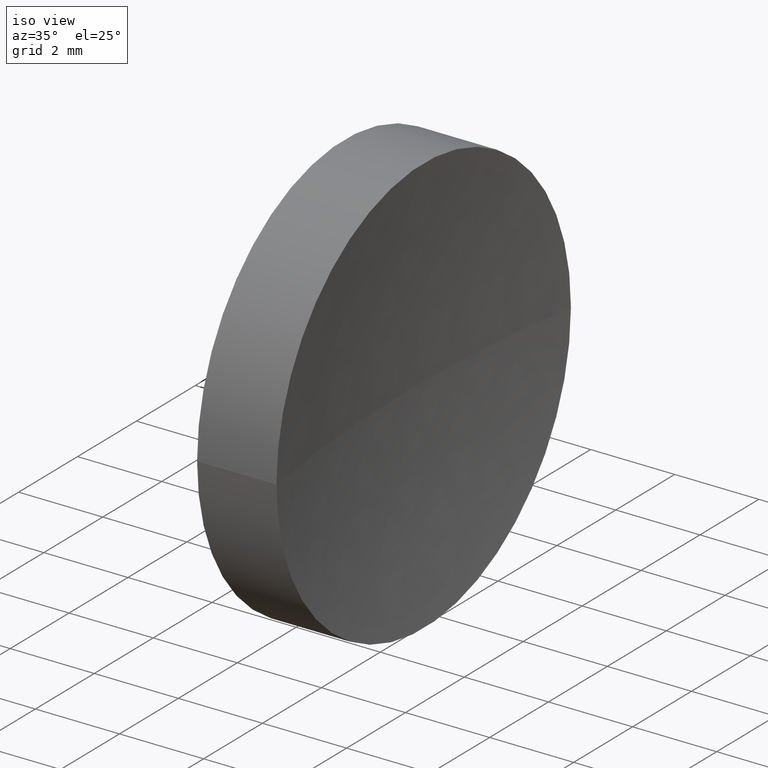
[diagram: clean part render]
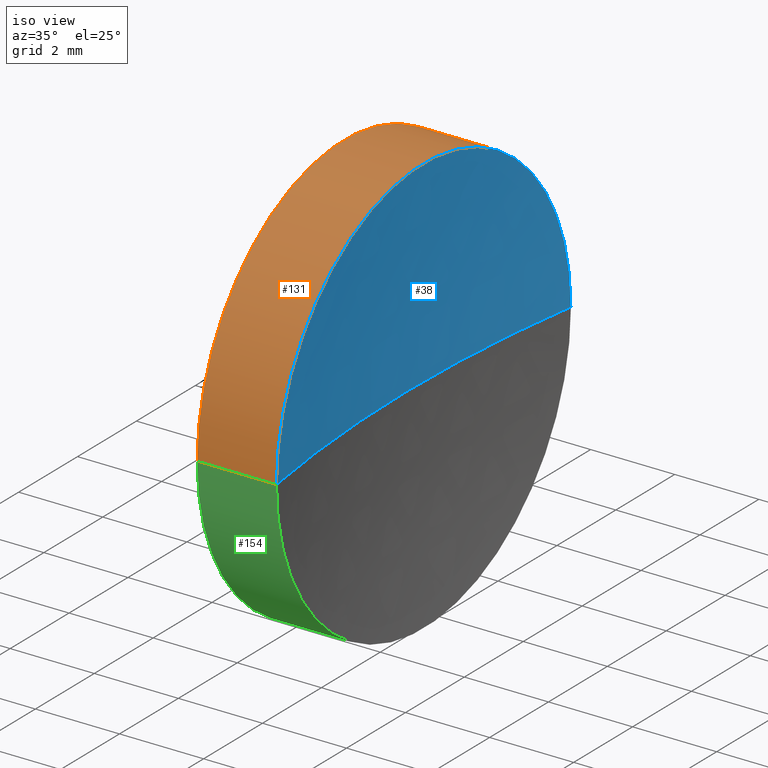
[diagram: same view with three faces highlighted in distinct colors, each labeled with its STEP entity id]
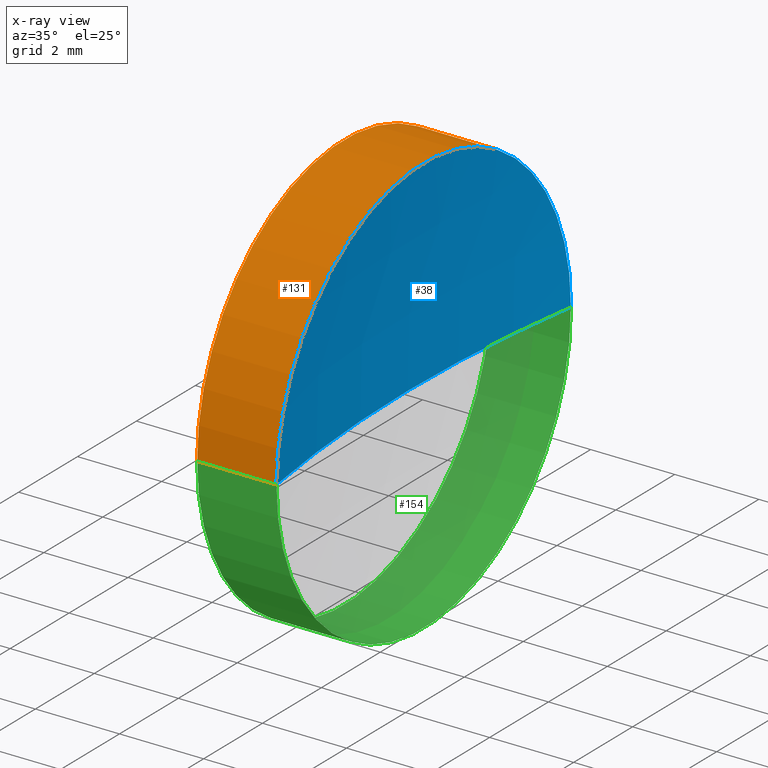
[diagram: x-ray of the same camera — body ghosted, the three highlighted faces saturated]
A machine part, iso view with three faces highlighted in distinct colors.
The next image is the same camera in x-ray (body ghosted, the three faces saturated) — at least one of them is partly hidden behind the body in this view.
Their STEP definitions:

[orange] entity #131 — the highlighted cylindrical surface (partial cylindrical patch) has radius 5 mm, axis along (-1, 0, -0).
#1 = ORIENTED_EDGE ( 'NONE', *, *, #104, .T. ) ;
#2 = CARTESIAN_POINT ( 'NONE',  ( 22.42423205362066000, 18.03112609140304200, 6.123233995736768300E-016 ) ) ;
#5 = CARTESIAN_POINT ( 'NONE',  ( 24.31115060695783500, 13.03112609140304000, 0.0000000000000000000 ) ) ;
#9 = VERTEX_POINT ( 'NONE', #2 ) ;
#11 = DIRECTION ( 'NONE',  ( -1.000000000000000000, 3.159171411554934600E-016, -0.0000000000000000000 ) ) ;
#14 = DIRECTION ( 'NONE',  ( -1.000000000000000000, 3.159171411554934600E-016, -0.0000000000000000000 ) ) ;
#18 = EDGE_CURVE ( 'NONE', #36, #114, #113, .T. ) ;
#22 = VECTOR ( 'NONE', #78, 1000.000000000000000 ) ;
#24 = EDGE_CURVE ( 'NONE', #114, #9, #150, .T. ) ;
#25 = CARTESIAN_POINT ( 'NONE',  ( 22.42423205362066000, 13.03112609140304200, 0.0000000000000000000 ) ) ;
#34 = CARTESIAN_POINT ( 'NONE',  ( 21.50597511808246100, 18.03112609140304200, 6.123233995736768300E-016 ) ) ;
#35 = VERTEX_POINT ( 'NONE', #43 ) ;
#36 = VERTEX_POINT ( 'NONE', #143 ) ;
#37 = ORIENTED_EDGE ( 'NONE', *, *, #24, .F. ) ;
#42 = VECTOR ( 'NONE', #155, 1000.000000000000000 ) ;
#43 = CARTESIAN_POINT ( 'NONE',  ( 24.31115060695783800, 18.03112609140307800, 0.0000000000000000000 ) ) ;
#48 = EDGE_CURVE ( 'NONE', #35, #9, #109, .T. ) ;
#49 = DIRECTION ( 'NONE',  ( 0.0000000000000000000, -1.000000000000000000, 0.0000000000000000000 ) ) ;
#53 = FACE_OUTER_BOUND ( 'NONE', #87, .T. ) ;
#59 = AXIS2_PLACEMENT_3D ( 'NONE', #25, #11, #120 ) ;
#64 = CARTESIAN_POINT ( 'NONE',  ( 21.50597511808246100, 8.031126091403040200, 0.0000000000000000000 ) ) ;
#78 = DIRECTION ( 'NONE',  ( -1.000000000000000000, 3.159171411554934600E-016, -0.0000000000000000000 ) ) ;
#79 = CYLINDRICAL_SURFACE ( 'NONE', #134, 5.000000000000000900 ) ;
#87 = EDGE_LOOP ( 'NONE', ( #1, #153, #37, #144 ) ) ;
#89 = DIRECTION ( 'NONE',  ( -1.000000000000000000, 3.159171411554934600E-016, -0.0000000000000000000 ) ) ;
#93 = AXIS2_PLACEMENT_3D ( 'NONE', #5, #89, #49 ) ;
#99 = CIRCLE ( 'NONE', #93, 5.000000000000002700 ) ;
#104 = EDGE_CURVE ( 'NONE', #36, #35, #99, .T. ) ;
#109 = LINE ( 'NONE', #34, #22 ) ;
#113 = LINE ( 'NONE', #64, #42 ) ;
#114 = VERTEX_POINT ( 'NONE', #139 ) ;
#120 = DIRECTION ( 'NONE',  ( 0.0000000000000000000, -1.000000000000000000, 0.0000000000000000000 ) ) ;
#131 = ADVANCED_FACE ( 'NONE', ( #53 ), #79, .T. ) ;
#134 = AXIS2_PLACEMENT_3D ( 'NONE', #162, #14, #152 ) ;
#139 = CARTESIAN_POINT ( 'NONE',  ( 22.42423205362066000, 8.031126091403040200, 0.0000000000000000000 ) ) ;
#143 = CARTESIAN_POINT ( 'NONE',  ( 24.31115060695783800, 8.031126091403004700, -6.123233995736810700E-016 ) ) ;
#144 = ORIENTED_EDGE ( 'NONE', *, *, #18, .F. ) ;
#150 = CIRCLE ( 'NONE', #59, 5.000000000000000900 ) ;
#152 = DIRECTION ( 'NONE',  ( 0.0000000000000000000, -1.000000000000000000, 0.0000000000000000000 ) ) ;
#153 = ORIENTED_EDGE ( 'NONE', *, *, #48, .T. ) ;
#155 = DIRECTION ( 'NONE',  ( -1.000000000000000000, 3.159171411554934600E-016, -0.0000000000000000000 ) ) ;
#162 = CARTESIAN_POINT ( 'NONE',  ( 21.50597511808246100, 13.03112609140304200, 0.0000000000000000000 ) ) ;

[blue] entity #38 — the highlighted spherical surface has radius 32.5 mm.
#5 = CARTESIAN_POINT ( 'NONE',  ( 24.31115060695783500, 13.03112609140304000, 0.0000000000000000000 ) ) ;
#8 = EDGE_CURVE ( 'NONE', #35, #101, #81, .T. ) ;
#10 = EDGE_CURVE ( 'NONE', #36, #101, #20, .T. ) ;
#20 = CIRCLE ( 'NONE', #32, 32.50000000000001400 ) ;
#32 = AXIS2_PLACEMENT_3D ( 'NONE', #44, #71, #157 ) ;
#35 = VERTEX_POINT ( 'NONE', #43 ) ;
#36 = VERTEX_POINT ( 'NONE', #143 ) ;
#38 = ADVANCED_FACE ( 'NONE', ( #72 ), #111, .F. ) ;
#41 = AXIS2_PLACEMENT_3D ( 'NONE', #73, #85, #86 ) ;
#43 = CARTESIAN_POINT ( 'NONE',  ( 24.31115060695783800, 18.03112609140307800, 0.0000000000000000000 ) ) ;
#44 = CARTESIAN_POINT ( 'NONE',  ( 56.42423205362066300, 13.03112609140303100, 0.0000000000000000000 ) ) ;
#49 = DIRECTION ( 'NONE',  ( 0.0000000000000000000, -1.000000000000000000, 0.0000000000000000000 ) ) ;
#55 = EDGE_LOOP ( 'NONE', ( #76, #161, #91 ) ) ;
#61 = DIRECTION ( 'NONE',  ( 1.000000000000000000, 0.0000000000000000000, 0.0000000000000000000 ) ) ;
#63 = AXIS2_PLACEMENT_3D ( 'NONE', #142, #145, #61 ) ;
#71 = DIRECTION ( 'NONE',  ( 3.868869157118576300E-032, 1.224646799147353200E-016, -1.000000000000000000 ) ) ;
#72 = FACE_OUTER_BOUND ( 'NONE', #55, .T. ) ;
#73 = CARTESIAN_POINT ( 'NONE',  ( 56.42423205362066300, 13.03112609140303100, 0.0000000000000000000 ) ) ;
#76 = ORIENTED_EDGE ( 'NONE', *, *, #104, .F. ) ;
#81 = CIRCLE ( 'NONE', #63, 32.50000000000000700 ) ;
#85 = DIRECTION ( 'NONE',  ( 0.0000000000000000000, 0.0000000000000000000, -1.000000000000000000 ) ) ;
#86 = DIRECTION ( 'NONE',  ( 2.135044278125300100E-016, 1.000000000000000000, 0.0000000000000000000 ) ) ;
#89 = DIRECTION ( 'NONE',  ( -1.000000000000000000, 3.159171411554934600E-016, -0.0000000000000000000 ) ) ;
#91 = ORIENTED_EDGE ( 'NONE', *, *, #8, .F. ) ;
#93 = AXIS2_PLACEMENT_3D ( 'NONE', #5, #89, #49 ) ;
#99 = CIRCLE ( 'NONE', #93, 5.000000000000002700 ) ;
#101 = VERTEX_POINT ( 'NONE', #124 ) ;
#104 = EDGE_CURVE ( 'NONE', #36, #35, #99, .T. ) ;
#111 = SPHERICAL_SURFACE ( 'NONE', #41, 32.50000000000000700 ) ;
#124 = CARTESIAN_POINT ( 'NONE',  ( 23.92423205362065300, 13.03112609140304400, 0.0000000000000000000 ) ) ;
#142 = CARTESIAN_POINT ( 'NONE',  ( 56.42423205362066300, 13.03112609140303100, 0.0000000000000000000 ) ) ;
#143 = CARTESIAN_POINT ( 'NONE',  ( 24.31115060695783800, 8.031126091403004700, -6.123233995736810700E-016 ) ) ;
#145 = DIRECTION ( 'NONE',  ( 0.0000000000000000000, 0.0000000000000000000, 1.000000000000000000 ) ) ;
#157 = DIRECTION ( 'NONE',  ( 0.0000000000000000000, 1.000000000000000000, 1.224646799147353200E-016 ) ) ;
#161 = ORIENTED_EDGE ( 'NONE', *, *, #10, .T. ) ;

[green] entity #154 — the highlighted cylindrical surface (partial cylindrical patch) has radius 5 mm, axis along (-1, 0, -0).
#2 = CARTESIAN_POINT ( 'NONE',  ( 22.42423205362066000, 18.03112609140304200, 6.123233995736768300E-016 ) ) ;
#9 = VERTEX_POINT ( 'NONE', #2 ) ;
#18 = EDGE_CURVE ( 'NONE', #36, #114, #113, .T. ) ;
#21 = ORIENTED_EDGE ( 'NONE', *, *, #39, .T. ) ;
#22 = VECTOR ( 'NONE', #78, 1000.000000000000000 ) ;
#26 = DIRECTION ( 'NONE',  ( 0.0000000000000000000, -1.000000000000000000, 0.0000000000000000000 ) ) ;
#27 = ORIENTED_EDGE ( 'NONE', *, *, #48, .F. ) ;
#28 = CARTESIAN_POINT ( 'NONE',  ( 22.42423205362066000, 13.03112609140304200, 0.0000000000000000000 ) ) ;
#30 = DIRECTION ( 'NONE',  ( -1.000000000000000000, 3.159171411554934600E-016, -0.0000000000000000000 ) ) ;
#31 = CYLINDRICAL_SURFACE ( 'NONE', #102, 5.000000000000000900 ) ;
#34 = CARTESIAN_POINT ( 'NONE',  ( 21.50597511808246100, 18.03112609140304200, 6.123233995736768300E-016 ) ) ;
#35 = VERTEX_POINT ( 'NONE', #43 ) ;
#36 = VERTEX_POINT ( 'NONE', #143 ) ;
#39 = EDGE_CURVE ( 'NONE', #35, #36, #117, .T. ) ;
#42 = VECTOR ( 'NONE', #155, 1000.000000000000000 ) ;
#43 = CARTESIAN_POINT ( 'NONE',  ( 24.31115060695783800, 18.03112609140307800, 0.0000000000000000000 ) ) ;
#48 = EDGE_CURVE ( 'NONE', #35, #9, #109, .T. ) ;
#50 = CARTESIAN_POINT ( 'NONE',  ( 21.50597511808246100, 13.03112609140304200, 0.0000000000000000000 ) ) ;
#51 = ORIENTED_EDGE ( 'NONE', *, *, #151, .F. ) ;
#64 = CARTESIAN_POINT ( 'NONE',  ( 21.50597511808246100, 8.031126091403040200, 0.0000000000000000000 ) ) ;
#66 = AXIS2_PLACEMENT_3D ( 'NONE', #107, #122, #26 ) ;
#67 = DIRECTION ( 'NONE',  ( 0.0000000000000000000, -1.000000000000000000, 0.0000000000000000000 ) ) ;
#75 = DIRECTION ( 'NONE',  ( 0.0000000000000000000, -1.000000000000000000, 0.0000000000000000000 ) ) ;
#78 = DIRECTION ( 'NONE',  ( -1.000000000000000000, 3.159171411554934600E-016, -0.0000000000000000000 ) ) ;
#94 = FACE_OUTER_BOUND ( 'NONE', #97, .T. ) ;
#97 = EDGE_LOOP ( 'NONE', ( #27, #21, #165, #51 ) ) ;
#102 = AXIS2_PLACEMENT_3D ( 'NONE', #50, #110, #67 ) ;
#107 = CARTESIAN_POINT ( 'NONE',  ( 24.31115060695783500, 13.03112609140304000, 0.0000000000000000000 ) ) ;
#109 = LINE ( 'NONE', #34, #22 ) ;
#110 = DIRECTION ( 'NONE',  ( -1.000000000000000000, 3.159171411554934600E-016, -0.0000000000000000000 ) ) ;
#113 = LINE ( 'NONE', #64, #42 ) ;
#114 = VERTEX_POINT ( 'NONE', #139 ) ;
#116 = CIRCLE ( 'NONE', #127, 5.000000000000000900 ) ;
#117 = CIRCLE ( 'NONE', #66, 5.000000000000002700 ) ;
#122 = DIRECTION ( 'NONE',  ( -1.000000000000000000, 3.159171411554934600E-016, -0.0000000000000000000 ) ) ;
#127 = AXIS2_PLACEMENT_3D ( 'NONE', #28, #30, #75 ) ;
#139 = CARTESIAN_POINT ( 'NONE',  ( 22.42423205362066000, 8.031126091403040200, 0.0000000000000000000 ) ) ;
#143 = CARTESIAN_POINT ( 'NONE',  ( 24.31115060695783800, 8.031126091403004700, -6.123233995736810700E-016 ) ) ;
#151 = EDGE_CURVE ( 'NONE', #9, #114, #116, .T. ) ;
#154 = ADVANCED_FACE ( 'NONE', ( #94 ), #31, .T. ) ;
#155 = DIRECTION ( 'NONE',  ( -1.000000000000000000, 3.159171411554934600E-016, -0.0000000000000000000 ) ) ;
#165 = ORIENTED_EDGE ( 'NONE', *, *, #18, .T. ) ;